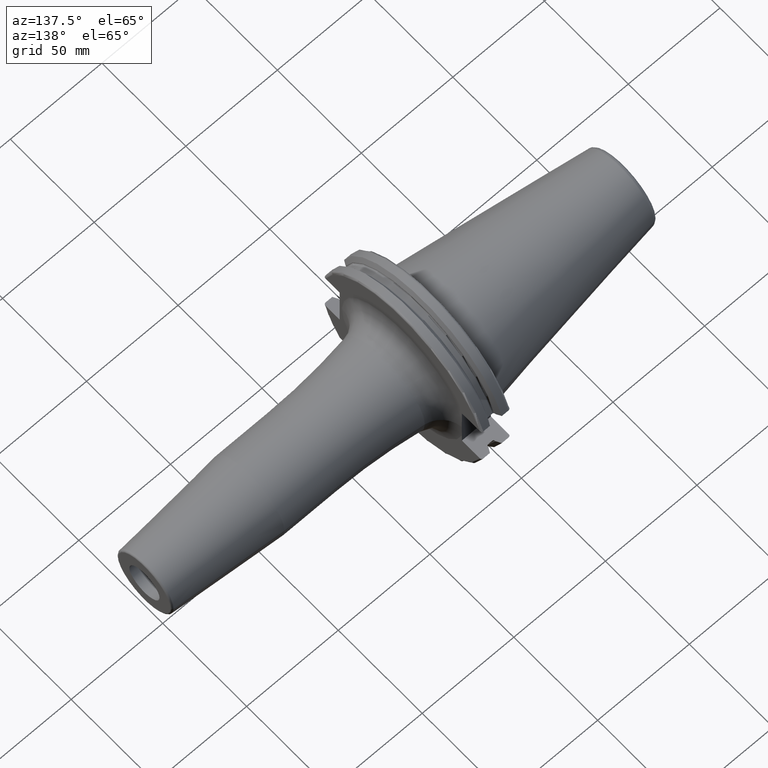
[diagram: clean part render]
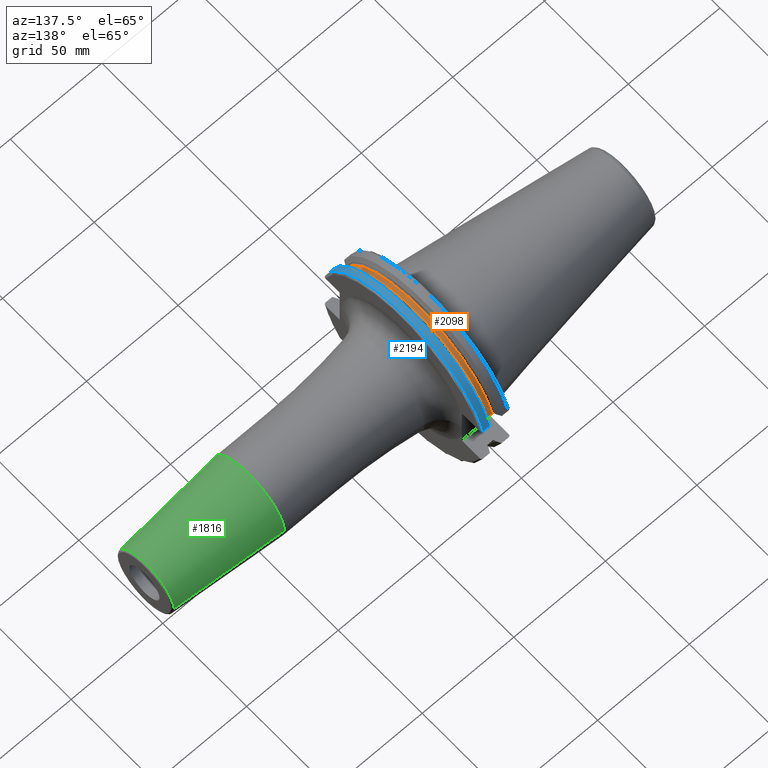
[diagram: same view with three faces highlighted in distinct colors, each labeled with its STEP entity id]
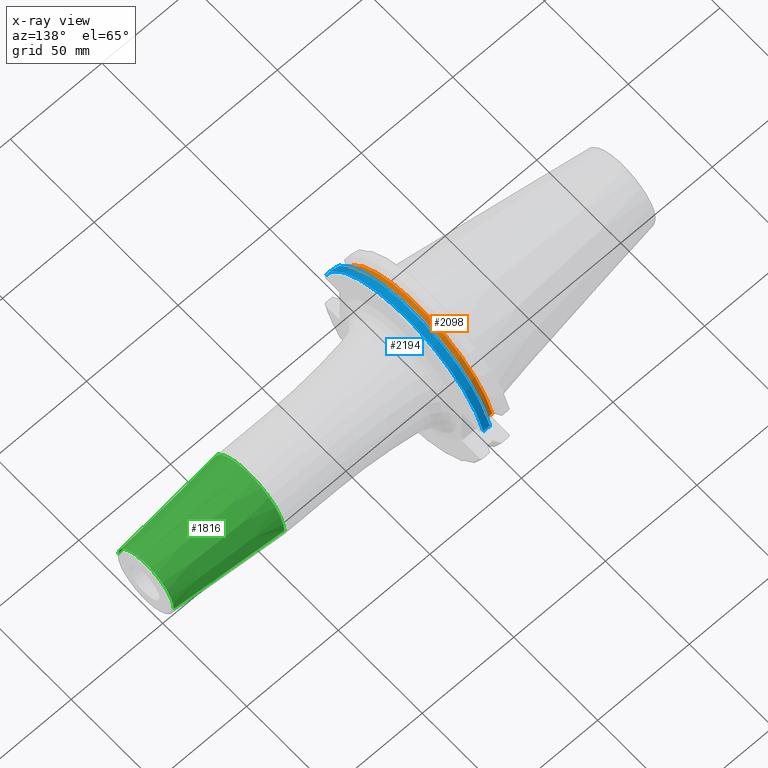
[diagram: x-ray of the same camera — body ghosted, the three highlighted faces saturated]
A machine part, auxiliary view with three faces highlighted in distinct colors.
The next image is the same camera in x-ray (body ghosted, the three faces saturated) — at least one of them is partly hidden behind the body in this view.
Their STEP definitions:

[orange] entity #2098 — the highlighted cylindrical surface (partial cylindrical patch) has radius 45.5 mm, axis along (1, 0, 0).
#371=CARTESIAN_POINT('',(1.00125E1,4.363301502303E1,1.29E1));
#391=CARTESIAN_POINT('',(1.00125E1,-4.363301502303E1,1.29E1));
#398=DIRECTION('',(1.E0,0.E0,0.E0));
#399=VECTOR('',#398,2.325E0);
#400=CARTESIAN_POINT('',(1.00125E1,4.363301502303E1,1.29E1));
#401=LINE('',#400,#399);
#402=DIRECTION('',(1.E0,0.E0,0.E0));
#403=VECTOR('',#402,2.325E0);
#404=CARTESIAN_POINT('',(1.00125E1,-4.363301502303E1,1.29E1));
#405=LINE('',#404,#403);
#406=CARTESIAN_POINT('',(1.00125E1,0.E0,0.E0));
#407=DIRECTION('',(1.E0,0.E0,0.E0));
#408=DIRECTION('',(0.E0,9.589673631435E-1,2.835164835165E-1));
#409=AXIS2_PLACEMENT_3D('',#406,#407,#408);
#433=CARTESIAN_POINT('',(1.23375E1,0.E0,0.E0));
#434=DIRECTION('',(1.E0,0.E0,0.E0));
#435=DIRECTION('',(0.E0,9.589673631435E-1,2.835164835165E-1));
#436=AXIS2_PLACEMENT_3D('',#433,#434,#435);
#1332=VERTEX_POINT('',#371);
#1333=VERTEX_POINT('',#391);
#1334=CARTESIAN_POINT('',(1.23375E1,4.363301502303E1,1.29E1));
#1335=VERTEX_POINT('',#1334);
#1336=CARTESIAN_POINT('',(1.23375E1,-4.363301502303E1,1.29E1));
#1337=VERTEX_POINT('',#1336);
#2086=CARTESIAN_POINT('',(7.325E0,0.E0,0.E0));
#2087=DIRECTION('',(1.E0,0.E0,0.E0));
#2088=DIRECTION('',(0.E0,-1.E0,0.E0));
#2089=AXIS2_PLACEMENT_3D('',#2086,#2087,#2088);
#2090=CYLINDRICAL_SURFACE('',#2089,4.55E1);
#2091=ORIENTED_EDGE('',*,*,#2019,.T.);
#2093=ORIENTED_EDGE('',*,*,#2092,.T.);
#2094=ORIENTED_EDGE('',*,*,#2048,.F.);
#2095=ORIENTED_EDGE('',*,*,#2079,.F.);
#2096=EDGE_LOOP('',(#2091,#2093,#2094,#2095));
#2097=FACE_OUTER_BOUND('',#2096,.F.);
#2098=ADVANCED_FACE('',(#2097),#2090,.T.);
#410=CIRCLE('',#409,4.55E1);
#437=CIRCLE('',#436,4.55E1);
#2019=EDGE_CURVE('',#1332,#1335,#401,.T.);
#2048=EDGE_CURVE('',#1333,#1337,#405,.T.);
#2079=EDGE_CURVE('',#1332,#1333,#410,.T.);
#2092=EDGE_CURVE('',#1335,#1337,#437,.T.);

[blue] entity #2194 — the highlighted cylindrical surface (partial cylindrical patch) has radius 48.7375 mm, axis along (1, 0, 0).
#477=CARTESIAN_POINT('',(1.441537838583E1,4.699929686974E1,1.29E1));
#489=CARTESIAN_POINT('',(1.441537838583E1,-4.699929686974E1,1.29E1));
#509=DIRECTION('',(1.E0,0.E0,0.E0));
#510=VECTOR('',#509,3.634621614173E0);
#511=CARTESIAN_POINT('',(1.441537838583E1,4.699929686974E1,1.29E1));
#512=LINE('',#511,#510);
#513=CARTESIAN_POINT('',(1.805E1,0.E0,0.E0));
#514=DIRECTION('',(1.E0,0.E0,0.E0));
#515=DIRECTION('',(0.E0,9.643354064066E-1,2.646832521159E-1));
#516=AXIS2_PLACEMENT_3D('',#513,#514,#515);
#518=DIRECTION('',(1.E0,0.E0,0.E0));
#519=VECTOR('',#518,3.634621614173E0);
#520=CARTESIAN_POINT('',(1.441537838583E1,-4.699929686974E1,1.29E1));
#521=LINE('',#520,#519);
#522=CARTESIAN_POINT('',(1.441537838583E1,0.E0,0.E0));
#523=DIRECTION('',(1.E0,0.E0,0.E0));
#524=DIRECTION('',(0.E0,9.643354064066E-1,2.646832521159E-1));
#525=AXIS2_PLACEMENT_3D('',#522,#523,#524);
#1352=VERTEX_POINT('',#477);
#1353=VERTEX_POINT('',#489);
#1384=CARTESIAN_POINT('',(1.805E1,4.699929686974E1,1.29E1));
#1385=VERTEX_POINT('',#1384);
#1388=CARTESIAN_POINT('',(1.805E1,-4.699929686974E1,1.29E1));
#1389=VERTEX_POINT('',#1388);
#2182=CARTESIAN_POINT('',(-1.076325E2,0.E0,0.E0));
#2183=DIRECTION('',(1.E0,0.E0,0.E0));
#2184=DIRECTION('',(0.E0,-1.E0,0.E0));
#2185=AXIS2_PLACEMENT_3D('',#2182,#2183,#2184);
#2186=CYLINDRICAL_SURFACE('',#2185,4.87375E1);
#2187=ORIENTED_EDGE('',*,*,#2011,.T.);
#2189=ORIENTED_EDGE('',*,*,#2188,.T.);
#2190=ORIENTED_EDGE('',*,*,#2056,.F.);
#2191=ORIENTED_EDGE('',*,*,#2162,.F.);
#2192=EDGE_LOOP('',(#2187,#2189,#2190,#2191));
#2193=FACE_OUTER_BOUND('',#2192,.F.);
#2194=ADVANCED_FACE('',(#2193),#2186,.T.);
#517=CIRCLE('',#516,4.87375E1);
#526=CIRCLE('',#525,4.87375E1);
#2011=EDGE_CURVE('',#1352,#1385,#512,.T.);
#2056=EDGE_CURVE('',#1353,#1389,#521,.T.);
#2162=EDGE_CURVE('',#1352,#1353,#526,.T.);
#2188=EDGE_CURVE('',#1385,#1389,#517,.T.);

[green] entity #1816 — the highlighted conical surface has half-angle 4.5 deg.
#239=CARTESIAN_POINT('',(1.028220786872E2,0.E0,0.E0));
#240=DIRECTION('',(1.E0,0.E0,0.E0));
#241=DIRECTION('',(0.E0,1.E0,0.E0));
#242=AXIS2_PLACEMENT_3D('',#239,#240,#241);
#244=CARTESIAN_POINT('',(1.590784590957E2,0.E0,0.E0));
#245=DIRECTION('',(-1.E0,0.E0,0.E0));
#246=DIRECTION('',(0.E0,-1.E0,0.E0));
#247=AXIS2_PLACEMENT_3D('',#244,#245,#246);
#264=DIRECTION('',(-9.969173337331E-1,7.845909572785E-2,4.147687553598E-14));
#265=VECTOR('',#264,5.643033630266E1);
#266=CARTESIAN_POINT('',(1.590784590957E2,1.657252684207E1,
-2.337982277001E-12));
#267=LINE('',#266,#265);
#268=DIRECTION('',(-9.969173337331E-1,-7.845909572785E-2,-4.146776117966E-14));
#269=VECTOR('',#268,5.643033630266E1);
#270=CARTESIAN_POINT('',(1.590784590957E2,-1.657252684207E1,
2.337467950808E-12));
#271=LINE('',#270,#269);
#1470=CARTESIAN_POINT('',(1.028220786872E2,2.1E1,0.E0));
#1471=CARTESIAN_POINT('',(1.028220786872E2,-2.1E1,0.E0));
#1472=VERTEX_POINT('',#1470);
#1473=VERTEX_POINT('',#1471);
#1474=CARTESIAN_POINT('',(1.590784590957E2,1.657252684207E1,0.E0));
#1475=CARTESIAN_POINT('',(1.590784590957E2,-1.657252684207E1,0.E0));
#1476=VERTEX_POINT('',#1474);
#1477=VERTEX_POINT('',#1475);
#1802=CARTESIAN_POINT('',(1.309502688915E2,0.E0,0.E0));
#1803=DIRECTION('',(-1.E0,0.E0,0.E0));
#1804=DIRECTION('',(0.E0,1.E0,0.E0));
#1805=AXIS2_PLACEMENT_3D('',#1802,#1803,#1804);
#1806=CONICAL_SURFACE('',#1805,1.878626342104E1,4.5E0);
#1808=ORIENTED_EDGE('',*,*,#1807,.F.);
#1810=ORIENTED_EDGE('',*,*,#1809,.T.);
#1811=ORIENTED_EDGE('',*,*,#1796,.F.);
#1813=ORIENTED_EDGE('',*,*,#1812,.F.);
#1814=EDGE_LOOP('',(#1808,#1810,#1811,#1813));
#1815=FACE_OUTER_BOUND('',#1814,.F.);
#1816=ADVANCED_FACE('',(#1815),#1806,.T.);
#243=CIRCLE('',#242,2.1E1);
#248=CIRCLE('',#247,1.657252684207E1);
#1796=EDGE_CURVE('',#1472,#1473,#243,.T.);
#1807=EDGE_CURVE('',#1477,#1476,#248,.T.);
#1809=EDGE_CURVE('',#1477,#1473,#271,.T.);
#1812=EDGE_CURVE('',#1476,#1472,#267,.T.);